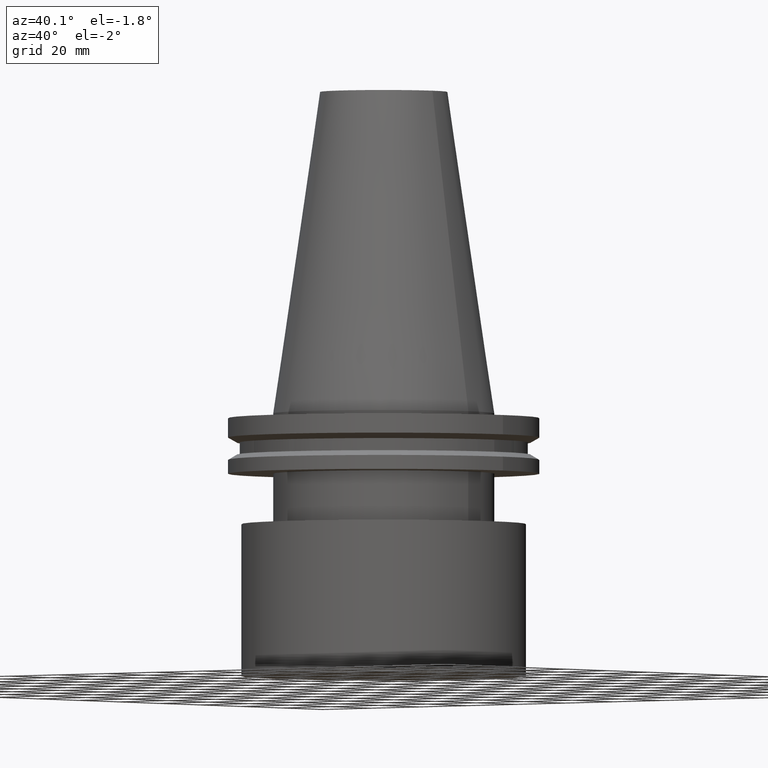
[diagram: clean part render]
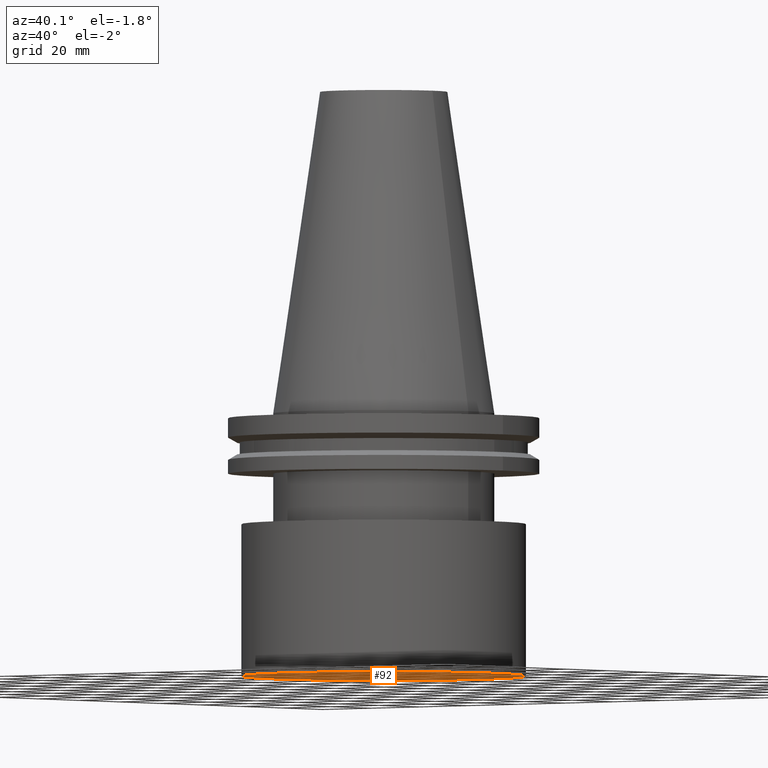
[diagram: same view with one face highlighted and labeled with its STEP entity id]
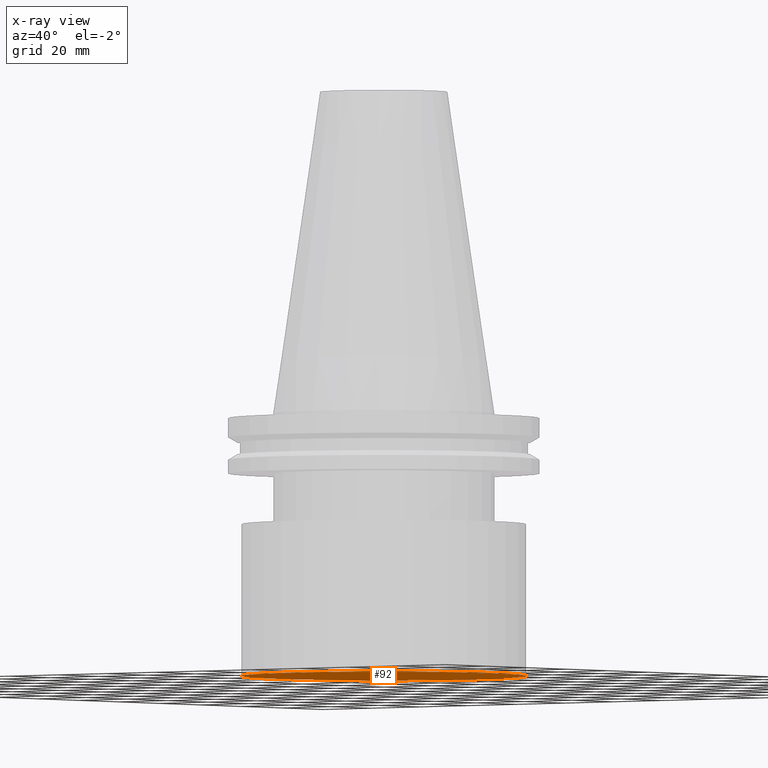
[diagram: x-ray of the same camera — body ghosted, the highlighted face saturated]
A machine part, auxiliary view. The second image highlights one B-rep face of the part: STEP entity #92.
The next image is the same camera in x-ray: the body ghosted, the highlighted face saturated — about 0% of this face is hidden behind the body in this view.
In plain terms, the highlighted planar face has unit normal (-0, 0, -1).
Its self-contained STEP definition (entity closure, byte-faithful):
#27 = VERTEX_POINT ( 'NONE', #88 ) ;
#69 = EDGE_LOOP ( 'NONE', ( #131 ) ) ;
#81 = DIRECTION ( 'NONE',  ( -0.000000000000000000, 3.576656801789151849E-17, -1.000000000000000000 ) ) ;
#88 = CARTESIAN_POINT ( 'NONE',  ( 0.000000000000000000, 44.99609999999999843, -83.00719999999999743 ) ) ;
#89 = CIRCLE ( 'NONE', #349, 44.99609999999999843 ) ;
#92 = ADVANCED_FACE ( 'NONE', ( #198 ), #395, .T. ) ;
#131 = ORIENTED_EDGE ( 'NONE', *, *, #298, .T. ) ;
#169 = CARTESIAN_POINT ( 'NONE',  ( 0.000000000000000000, 1.717052784148521541E-15, -83.00719999999999743 ) ) ;
#172 = DIRECTION ( 'NONE',  ( -0.000000000000000000, 3.576656801789151849E-17, -1.000000000000000000 ) ) ;
#198 = FACE_OUTER_BOUND ( 'NONE', #69, .T. ) ;
#207 = DIRECTION ( 'NONE',  ( 0.000000000000000000, 1.000000000000000000, 3.576656801789151849E-17 ) ) ;
#298 = EDGE_CURVE ( 'NONE', #27, #27, #89, .T. ) ;
#349 = AXIS2_PLACEMENT_3D ( 'NONE', #169, #172, #355 ) ;
#355 = DIRECTION ( 'NONE',  ( 0.000000000000000000, 1.000000000000000000, 0.000000000000000000 ) ) ;
#378 = AXIS2_PLACEMENT_3D ( 'NONE', #383, #81, #207 ) ;
#383 = CARTESIAN_POINT ( 'NONE',  ( 0.000000000000000000, 44.99609999999999843, -83.00719999999999743 ) ) ;
#395 = PLANE ( 'NONE',  #378 ) ;